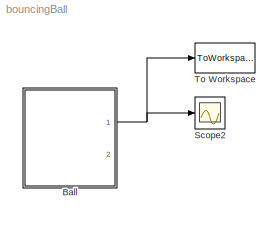
MODEL bouncingBall
KIND model
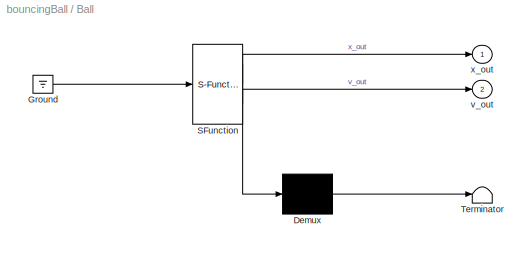
BLOCK [SubSystem] Ball
  ErrorFcn = Stateflow.Translate.translate
  PermitHierarchicalResolution = ExplicitOnly
  Ports = [0, 2]
  RequestExecContextInheritance = off
  SFBlockType = Chart
  SID = 26
  TreatAsAtomicUnit = on
BLOCK [Demux] Ball/ Demux 
  Outputs = 1
  Ports = [1, 1]
  SID = 26::90
BLOCK [Ground] Ball/ Ground 
  SID = 26::97
BLOCK [S-Function] Ball/ SFunction 
  EnableBusSupport = on
  FunctionName = sf_sfun
  PortCounts = [1 3]
  Ports = [1, 3]
  SFcnIsStateOwnerBlock = off
  SFunctionDeploymentMode = off
  SID = 26::89
  Tag = Stateflow S-Function bouncingBall 1
BLOCK [Terminator] Ball/ Terminator 
  SID = 26::91
BLOCK [Outport] Ball/v_out
  IconDisplay = Port number
  Port = 2
  SID = 26::98
BLOCK [Outport] Ball/x_out
  IconDisplay = Port number
  SID = 26::95
BLOCK [Scope] Scope2
  Floating = off
  NumInputPorts = 1
  Ports = [1]
  SID = 6
  ScopeSpecificationString = Simulink.scopes.TimeScopeBlockCfg('CurrentConfiguration', extmgr.ConfigurationSet(extmgr.Configuration('Core','General UI',true),extmgr.Configuration('Core','Source UI',true),extmgr.Configuration('Sources','WiredSimulink',true,'DataLoggingVariableName','ScopeData2'),extmgr.Configuration('Visuals','Time Domain',true,'SerializedDisplays',{struct('MinYLimReal','-1.0392','MaxYLimReal','1.35369','YLabe...<+1468ch>
BLOCK [ToWorkspace] To Workspace
  FixptAsFi = on
  MaxDataPoints = inf
  Ports = [1]
  SID = 28
  SampleTime = -1
  Save2DSignal = 3-D array (concatenate along third dimension)
  SaveFormat = Timeseries
  VariableName = simout
LINE Ball/ Demux :1 -> Ball/ Terminator :1
LINE Ball/ Ground :1 -> Ball/ SFunction :1
LINE Ball/ SFunction :1 -> Ball/ Demux :1
LINE Ball/ SFunction :2 -> Ball/x_out:1
LINE Ball/ SFunction :3 -> Ball/v_out:1
NET Ball:1 -> Scope2:1, To Workspace:1
note: NET lines group one-source signal fan-out (src -> all destinations, sorted); 1:1 wires keep LINE
CHART Ball states=1 transitions=2
  STATE_LABEL 'BouncingBall\\ndu:\\nv_dot = -9.81;\\nx_dot = v;\\nv_out = v;\\nx_out = x;'
